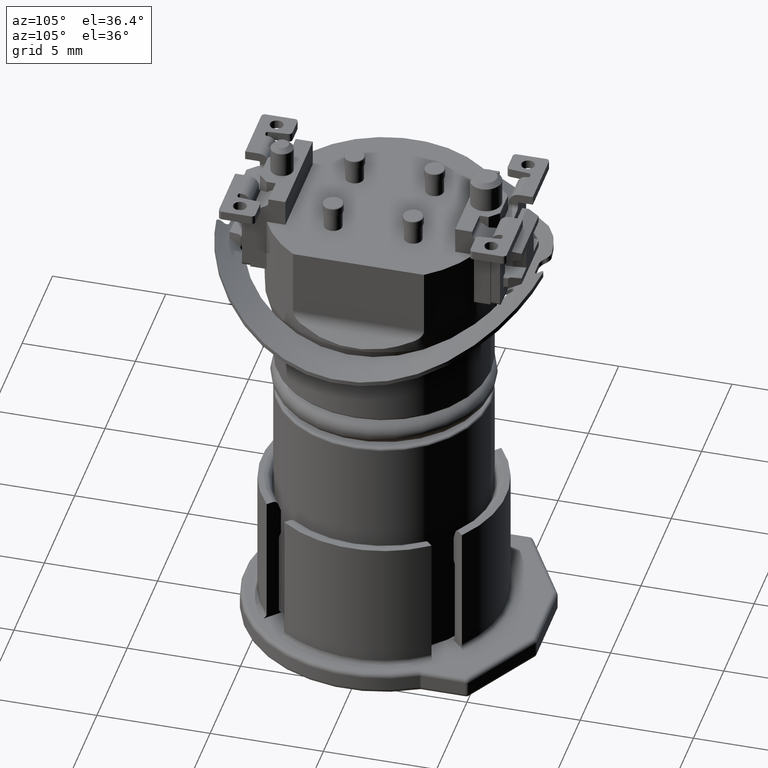
[diagram: clean part render]
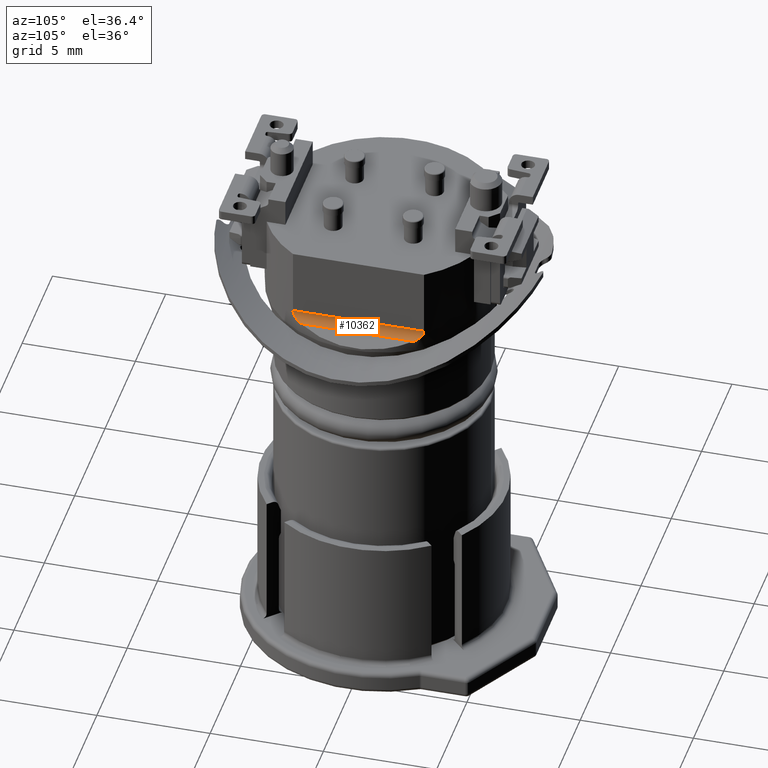
[diagram: same view with one face highlighted and labeled with its STEP entity id]
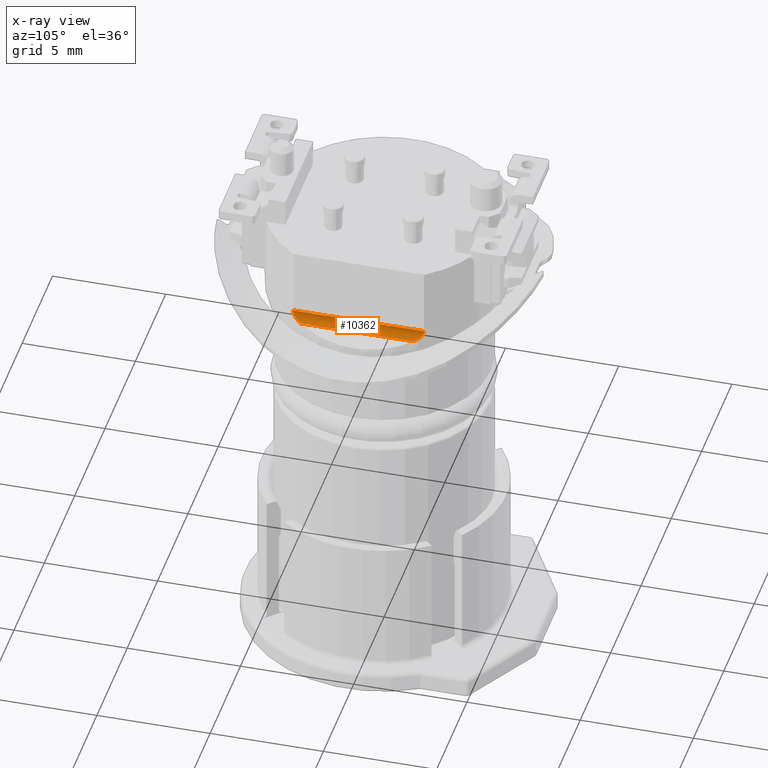
[diagram: x-ray of the same camera — body ghosted, the highlighted face saturated]
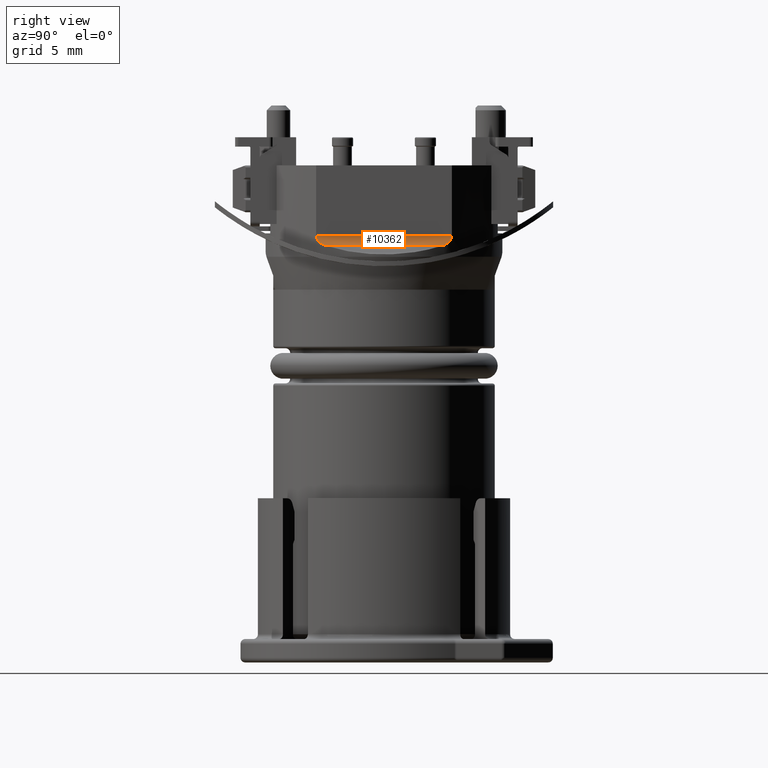
[diagram: same view with one face highlighted and labeled with its STEP entity id]
A machine part, auxiliary view. The second image highlights one B-rep face of the part: STEP entity #10362.
The next image is the same camera in x-ray: the body ghosted, the highlighted face saturated — about 0% of this face is hidden behind the body in this view.
A second angle (right view) of the same face is appended — the face is thin or edge-on in the first view.
In plain terms, the highlighted cylindrical surface (edge-blend (fillet) strip) has radius 0.5 mm, axis along (0, 1, 0).
Its self-contained STEP definition (entity closure, byte-faithful):
#85=DIRECTION('',(0.E0,1.E0,0.E0));
#86=VECTOR('',#85,5.786190456596E0);
#87=CARTESIAN_POINT('',(4.2E0,-2.893095228298E0,-4.191709623135E0));
#88=LINE('',#87,#86);
#93=CARTESIAN_POINT('',(4.45E0,-2.491485500660E0,-4.624722325027E0));
#99=CARTESIAN_POINT('',(4.45E0,2.491485500660E0,-4.624722325027E0));
#101=CARTESIAN_POINT('',(4.2E0,2.893095228298E0,-4.191709623135E0));
#102=CARTESIAN_POINT('',(4.2E0,2.893095228298E0,-4.214064916001E0));
#103=CARTESIAN_POINT('',(4.202988236030E0,2.888764381306E0,-4.259089447686E0));
#104=CARTESIAN_POINT('',(4.217030997776E0,2.868277527776E0,-4.327542624699E0));
#105=CARTESIAN_POINT('',(4.242000353558E0,2.831331476152E0,-4.397013128105E0));
#106=CARTESIAN_POINT('',(4.278789906161E0,2.775596694576E0,-4.464838074311E0));
#107=CARTESIAN_POINT('',(4.326233527396E0,2.701283940813E0,-4.526893156183E0));
#108=CARTESIAN_POINT('',(4.383337231114E0,2.607897200109E0,-4.581340120541E0));
#109=CARTESIAN_POINT('',(4.426980114399E0,2.532600927942E0,-4.611431787878E0));
#110=CARTESIAN_POINT('',(4.45E0,2.491485500660E0,-4.624722325027E0));
#188=CARTESIAN_POINT('',(4.45E0,-2.491485500660E0,-4.624722325027E0));
#189=CARTESIAN_POINT('',(4.426980189717E0,-2.532600793417E0,-4.611431831363E0));
#190=CARTESIAN_POINT('',(4.383337336038E0,-2.607897030316E0,-4.581340218253E0));
#191=CARTESIAN_POINT('',(4.326233215702E0,-2.701284453186E0,-4.526892885868E0));
#192=CARTESIAN_POINT('',(4.278789000812E0,-2.775598098652E0,-4.464836776207E0));
#193=CARTESIAN_POINT('',(4.241999029050E0,-2.831333464876E0,-4.397010488356E0));
#194=CARTESIAN_POINT('',(4.217029481177E0,-2.868279753327E0,-4.327537310743E0));
#195=CARTESIAN_POINT('',(4.202987926677E0,-2.888764827254E0,-4.259086100924E0));
#196=CARTESIAN_POINT('',(4.2E0,-2.893095228298E0,-4.214063554995E0));
#197=CARTESIAN_POINT('',(4.2E0,-2.893095228298E0,-4.191709623135E0));
#199=DIRECTION('',(0.E0,1.E0,0.E0));
#200=VECTOR('',#199,4.982971001320E0);
#201=CARTESIAN_POINT('',(4.45E0,-2.491485500660E0,-4.624722325027E0));
#202=LINE('',#201,#200);
#9096=VERTEX_POINT('',#93);
#9097=VERTEX_POINT('',#99);
#9098=VERTEX_POINT('',#197);
#9099=VERTEX_POINT('',#101);
#10351=CARTESIAN_POINT('',(4.7E0,-5.E0,-4.191709623135E0));
#10352=DIRECTION('',(0.E0,1.E0,0.E0));
#10353=DIRECTION('',(1.E0,0.E0,0.E0));
#10354=AXIS2_PLACEMENT_3D('',#10351,#10352,#10353);
#10355=CYLINDRICAL_SURFACE('',#10354,5.E-1);
#10356=ORIENTED_EDGE('',*,*,#10335,.T.);
#10357=ORIENTED_EDGE('',*,*,#10288,.T.);
#10358=ORIENTED_EDGE('',*,*,#10303,.T.);
#10359=ORIENTED_EDGE('',*,*,#10346,.F.);
#10360=EDGE_LOOP('',(#10356,#10357,#10358,#10359));
#10361=FACE_OUTER_BOUND('',#10360,.F.);
#111=B_SPLINE_CURVE_WITH_KNOTS('',3,(#101,#102,#103,#104,#105,#106,#107,#108,
#109,#110),.UNSPECIFIED.,.F.,.F.,(4,1,1,1,1,1,1,4),(0.E0,1.428571428571E-1,
2.857142857143E-1,4.285714285714E-1,5.714285714286E-1,7.142857142857E-1,
8.571428571429E-1,1.E0),.UNSPECIFIED.);
#198=B_SPLINE_CURVE_WITH_KNOTS('',3,(#188,#189,#190,#191,#192,#193,#194,#195,
#196,#197),.UNSPECIFIED.,.F.,.F.,(4,1,1,1,1,1,1,4),(0.E0,1.428571428571E-1,
2.857142857143E-1,4.285714285714E-1,5.714285714286E-1,7.142857142857E-1,
8.571428571429E-1,1.E0),.UNSPECIFIED.);
#10288=EDGE_CURVE('',#9098,#9099,#88,.T.);
#10303=EDGE_CURVE('',#9099,#9097,#111,.T.);
#10335=EDGE_CURVE('',#9096,#9098,#198,.T.);
#10346=EDGE_CURVE('',#9096,#9097,#202,.T.);
#10362=ADVANCED_FACE('',(#10361),#10355,.F.);